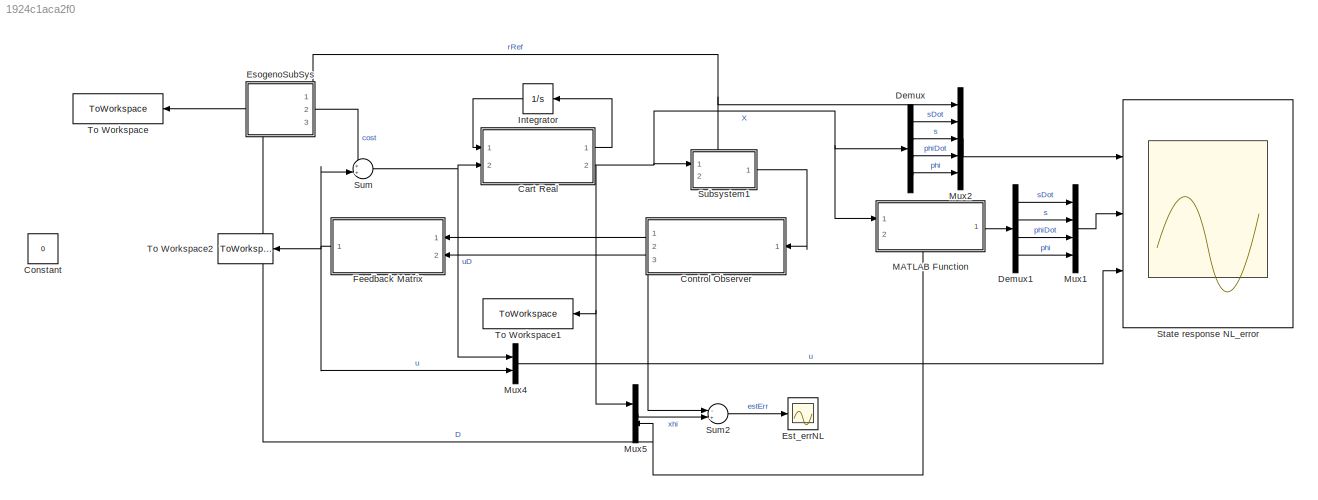
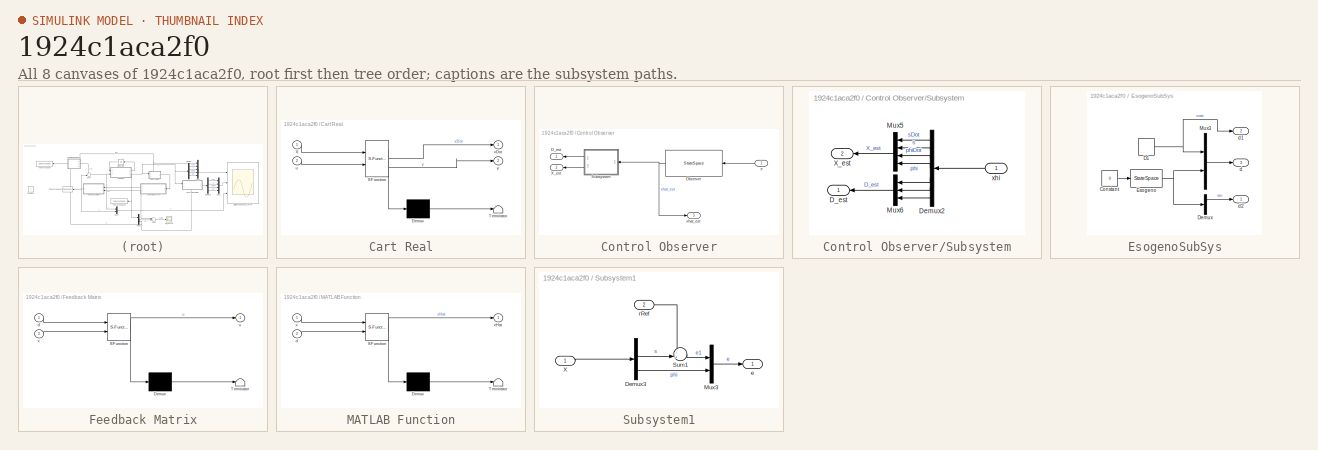
[diagram: thumbnail index - all 8 canvases of the model, root first then tree order]
MODEL slx_1924c1aca2f0
KIND model
CONFIG AbsTol = auto
CONFIG EnableMultiTasking = off
CONFIG FixedStep = 0.05
CONFIG InitFcn = variableCalc
CONFIG MaxStep = auto
CONFIG MinStep = auto
CONFIG RelTol = 1e-5
CONFIG SampleTimeConstraint = Unconstrained
CONFIG Solver = FixedStepAuto
CONFIG SolverName = FixedStepAuto
CONFIG StartTime = 0.0
CONFIG StopTime = time
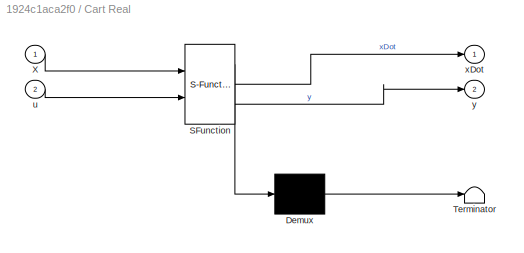
BLOCK [SubSystem] Cart Real
  ErrorFcn = Stateflow.Translate.translate
  PermitHierarchicalResolution = ExplicitOnly
  Ports = [2, 2]
  RequestExecContextInheritance = off
  SFBlockType = MATLAB Function
  TreatAsAtomicUnit = on
BLOCK [Demux] Cart Real/ Demux 
  Outputs = 1
  Ports = [1, 1]
BLOCK [S-Function] Cart Real/ SFunction 
  EnableBusSupport = on
  FunctionName = sf_sfun
  PortCounts = [2 3]
  Ports = [2, 3]
  SFcnIsStateOwnerBlock = off
  SFunctionDeploymentMode = off
  Tag = Stateflow S-Function 3
BLOCK [Terminator] Cart Real/ Terminator 
BLOCK [Inport] Cart Real/X
BLOCK [Inport] Cart Real/u
  Port = 2
BLOCK [Outport] Cart Real/xDot
BLOCK [Outport] Cart Real/y
  Port = 2
BLOCK [Constant] Constant
  Value = 0
BLOCK [SubSystem] Control Observer
  NameLocation = top
  PortSchema = {"entries":[{"content":{"sides":[{"content":{"connectorIds":["In1"]},"type":"ConnectorPlacement.EquallySpacedRectSide","uuid":"06f85cea-79fe-4a26-b9da-f6471bf8bf3e"},{"content":{"connectorIds":["Out1","Out2"],"side":"RIGHT"},"type":"ConnectorPlacement.EquallySpacedRectSide","uuid":"d648b2f6-c54a-4107-ac52-849760b06714"},{"content":{"connectorIds":[],"side":"TOP"},"type":"ConnectorPlacement.Equally...<+399ch>
  Ports = [1, 3]
  RequestExecContextInheritance = off
BLOCK [Outport] Control Observer/D_est
  NameLocation = left
BLOCK [StateSpace] Control Observer/Observer
  A = FOss
  B = GOss
  C = eye(7)
  D = zeros(7,2)
  InitialCondition = oss0
  Ports = [1, 1]
BLOCK [SubSystem] Control Observer/Subsystem
  NameLocation = top
  Ports = [1, 2]
  RequestExecContextInheritance = off
BLOCK [Outport] Control Observer/Subsystem/D_est
BLOCK [Demux] Control Observer/Subsystem/Demux2
  Outputs = 7
  Ports = [1, 7]
BLOCK [Mux] Control Observer/Subsystem/Mux5
  DisplayOption = bar
  NameLocation = top
  Ports = [4, 1]
BLOCK [Mux] Control Observer/Subsystem/Mux6
  DisplayOption = bar
  Inputs = 3
  NameLocation = top
  Ports = [3, 1]
BLOCK [Outport] Control Observer/Subsystem/X_est
  Port = 2
BLOCK [Inport] Control Observer/Subsystem/xhi
BLOCK [Outport] Control Observer/X_est
  NameLocation = left
  Port = 2
BLOCK [Inport] Control Observer/e
BLOCK [Outport] Control Observer/xhat_est
  Port = 3
BLOCK [Demux] Demux
  Ports = [1, 4]
BLOCK [Demux] Demux1
  Ports = [1, 4]
BLOCK [SubSystem] EsogenoSubSys
  PortSchema = {"entries":[{"content":{"sides":[{"content":{"connectorIds":["Out3"]},"type":"ConnectorPlacement.EquallySpacedRectSide","uuid":"2f048b8f-2ece-4481-a059-706f1c660597"},{"content":{"connectorIds":["Out1","Out2"],"side":"RIGHT"},"type":"ConnectorPlacement.EquallySpacedRectSide","uuid":"5f2d4447-8f06-4961-a5d4-88bfa1a982d6"},{"content":{"connectorIds":[],"side":"TOP"},"type":"ConnectorPlacement.Equall...<+250ch>
  Ports = [0, 3]
  RequestExecContextInheritance = off
BLOCK [Constant] EsogenoSubSys/Constant
  Value = 0
BLOCK [DiscretePulseGenerator] EsogenoSubSys/D1
  Amplitude = aD1
  Period = 1/wD1
  Ports = [0, 1]
  PulseType = Time based
  PulseWidth = 50
BLOCK [Demux] EsogenoSubSys/Demux
  Outputs = 2
  Ports = [1, 2]
BLOCK [StateSpace] EsogenoSubSys/Esogeno
  A = S
  B = bd
  C = cd
  D = dd
  InitialCondition = d0
  Ports = [1, 1]
BLOCK [Mux] EsogenoSubSys/Mux3
  DisplayOption = bar
  Inputs = 2
  Ports = [2, 1]
BLOCK [Outport] EsogenoSubSys/d
  Port = 3
BLOCK [Outport] EsogenoSubSys/d1
  Port = 2
BLOCK [Outport] EsogenoSubSys/d2
BLOCK [Scope] Est_errNL
  Floating = off
  NumInputPorts = 1
  Ports = [1]
  ScopeSpecificationString = Simulink.scopes.TimeScopeBlockCfg('CurrentConfiguration', extmgr.ConfigurationSet(extmgr.Configuration('Core','General UI',true),extmgr.Configuration('Core','Source UI',true),extmgr.Configuration('Sources','WiredSimulink',true,'DataLoggingVariableName','ScopeData1'),extmgr.Configuration('Visuals','Time Domain',true,'SerializedDisplays',{struct('MinYLimReal','-1379.03441','MaxYLimReal','1349.37072'...<+1638ch>
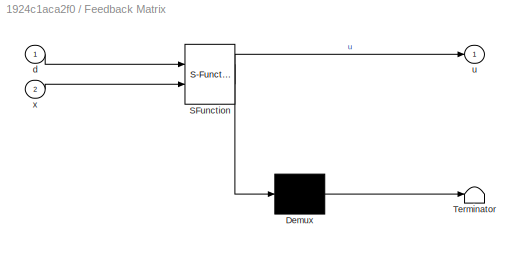
BLOCK [SubSystem] Feedback Matrix
  ErrorFcn = Stateflow.Translate.translate
  PermitHierarchicalResolution = ExplicitOnly
  Ports = [2, 1]
  RequestExecContextInheritance = off
  SFBlockType = MATLAB Function
  TreatAsAtomicUnit = on
BLOCK [Demux] Feedback Matrix/ Demux 
  Outputs = 1
  Ports = [1, 1]
BLOCK [S-Function] Feedback Matrix/ SFunction 
  EnableBusSupport = on
  FunctionName = sf_sfun
  PortCounts = [2 2]
  Ports = [2, 2]
  SFcnIsStateOwnerBlock = off
  SFunctionDeploymentMode = off
  Tag = Stateflow S-Function 2
BLOCK [Terminator] Feedback Matrix/ Terminator 
BLOCK [Inport] Feedback Matrix/d
BLOCK [Outport] Feedback Matrix/u
BLOCK [Inport] Feedback Matrix/x
  Port = 2
BLOCK [Integrator] Integrator
  InitialCondition = x0
  NameLocation = top
  Ports = [1, 1]
BLOCK [SubSystem] MATLAB Function
  ErrorFcn = Stateflow.Translate.translate
  PermitHierarchicalResolution = ExplicitOnly
  Ports = [2, 1]
  RequestExecContextInheritance = off
  SFBlockType = MATLAB Function
  TreatAsAtomicUnit = on
BLOCK [Demux] MATLAB Function/ Demux 
  Outputs = 1
  Ports = [1, 1]
BLOCK [S-Function] MATLAB Function/ SFunction 
  EnableBusSupport = on
  FunctionName = sf_sfun
  PortCounts = [2 2]
  Ports = [2, 2]
  SFcnIsStateOwnerBlock = off
  SFunctionDeploymentMode = off
  Tag = Stateflow S-Function 1
BLOCK [Terminator] MATLAB Function/ Terminator 
BLOCK [Inport] MATLAB Function/d
  Port = 2
BLOCK [Inport] MATLAB Function/x
BLOCK [Outport] MATLAB Function/xHat
BLOCK [Mux] Mux1
  DisplayOption = bar
  Ports = [4, 1]
BLOCK [Mux] Mux2
  DisplayOption = bar
  Inputs = 5
  Ports = [5, 1]
BLOCK [Mux] Mux4
  DisplayOption = bar
  Inputs = 2
  Ports = [2, 1]
BLOCK [Mux] Mux5
  DisplayOption = bar
  Inputs = 2
  Ports = [2, 1]
BLOCK [Scope] State response NL_error
  Floating = off
  NumInputPorts = 3
  Ports = [3]
  ScopeSpecificationString = Simulink.scopes.TimeScopeBlockCfg('CurrentConfiguration', extmgr.ConfigurationSet(extmgr.Configuration('Core','General UI',true),extmgr.Configuration('Core','Source UI',true),extmgr.Configuration('Sources','WiredSimulink',true),extmgr.Configuration('Visuals','Time Domain',true,'SerializedDisplays',{struct('MinYLimReal','-1.60081','MaxYLimReal','1.35162','YLabelReal','','MinYLimMag','0.00000','MaxY...<+3726ch>
BLOCK [SubSystem] Subsystem1
  PortSchema = {"entries":[{"content":{"sides":[{"content":{"connectorIds":["In1"]},"type":"ConnectorPlacement.EquallySpacedRectSide","uuid":"26d6d4a6-782a-4ec1-8ad1-624a6e3a6605"},{"content":{"connectorIds":["Out1"],"side":"RIGHT"},"type":"ConnectorPlacement.EquallySpacedRectSide","uuid":"9f19e00a-24c8-46ea-a664-70386d003256"},{"content":{"connectorIds":["In2"],"side":"TOP"},"type":"ConnectorPlacement.EquallySp...<+247ch>
  Ports = [2, 1]
  RequestExecContextInheritance = off
BLOCK [Demux] Subsystem1/Demux3
  Ports = [1, 4]
BLOCK [Mux] Subsystem1/Mux3
  DisplayOption = bar
  Inputs = 2
  Ports = [2, 1]
BLOCK [Sum] Subsystem1/Sum1
  Inputs = -+|
  Ports = [2, 1]
BLOCK [Inport] Subsystem1/X
BLOCK [Outport] Subsystem1/e
  NameLocation = top
BLOCK [Inport] Subsystem1/rRef
  Port = 2
BLOCK [Sum] Sum
  Inputs = ++|
  Ports = [2, 1]
BLOCK [Sum] Sum2
  Inputs = -+|
  Ports = [2, 1]
BLOCK [ToWorkspace] To Workspace
  FixptAsFi = on
  MaxDataPoints = inf
  NameLocation = top
  Ports = [1]
  SampleTime = -1
  SaveFormat = Timeseries
  VariableName = D
BLOCK [ToWorkspace] To Workspace1
  FixptAsFi = on
  MaxDataPoints = inf
  NameLocation = top
  Ports = [1]
  SampleTime = -1
  SaveFormat = Timeseries
  VariableName = X
BLOCK [ToWorkspace] To Workspace2
  FixptAsFi = on
  MaxDataPoints = inf
  NameLocation = top
  Ports = [1]
  SampleTime = -1
  SaveFormat = Timeseries
  VariableName = U
LINE Cart Real:1 -> Integrator:1
NET Cart Real:2 -> Demux:1, MATLAB Function:1, Mux5:1, Subsystem1:1, To Workspace1:1
NET Control Observer/Observer:1 -> Control Observer/Subsystem:1, Control Observer/xhat_est:1
LINE Control Observer/Subsystem/Demux2:1 -> Control Observer/Subsystem/Mux5:1
LINE Control Observer/Subsystem/Demux2:2 -> Control Observer/Subsystem/Mux5:2
LINE Control Observer/Subsystem/Demux2:3 -> Control Observer/Subsystem/Mux5:3
LINE Control Observer/Subsystem/Demux2:4 -> Control Observer/Subsystem/Mux5:4
LINE Control Observer/Subsystem/Demux2:5 -> Control Observer/Subsystem/Mux6:1
LINE Control Observer/Subsystem/Demux2:6 -> Control Observer/Subsystem/Mux6:2
LINE Control Observer/Subsystem/Demux2:7 -> Control Observer/Subsystem/Mux6:3
LINE Control Observer/Subsystem/Mux5:1 -> Control Observer/Subsystem/X_est:1
LINE Control Observer/Subsystem/Mux6:1 -> Control Observer/Subsystem/D_est:1
LINE Control Observer/Subsystem/xhi:1 -> Control Observer/Subsystem/Demux2:1
LINE Control Observer/Subsystem:1 -> Control Observer/D_est:1
LINE Control Observer/Subsystem:2 -> Control Observer/X_est:1
LINE Control Observer/e:1 -> Control Observer/Observer:1
LINE Control Observer:1 -> Feedback Matrix:1
LINE Control Observer:2 -> Feedback Matrix:2
LINE Control Observer:3 -> Sum2:1
LINE Demux1:1 -> Mux1:1
LINE Demux1:2 -> Mux1:2
LINE Demux1:3 -> Mux1:3
LINE Demux1:4 -> Mux1:4
LINE Demux:1 -> Mux2:2
LINE Demux:2 -> Mux2:3
LINE Demux:3 -> Mux2:4
LINE Demux:4 -> Mux2:5
LINE EsogenoSubSys/Constant:1 -> EsogenoSubSys/Esogeno:1
NET EsogenoSubSys/D1:1 -> EsogenoSubSys/Mux3:1, EsogenoSubSys/d1:1
LINE EsogenoSubSys/Demux:1 -> EsogenoSubSys/d2:1
NET EsogenoSubSys/Esogeno:1 -> EsogenoSubSys/Demux:1, EsogenoSubSys/Mux3:2
LINE EsogenoSubSys/Mux3:1 -> EsogenoSubSys/d:1
NET EsogenoSubSys:1 -> Mux2:1, Subsystem1:2
LINE EsogenoSubSys:2 -> Sum:1
NET EsogenoSubSys:3 -> MATLAB Function:2, Mux5:2, To Workspace:1
NET Feedback Matrix:1 -> Mux4:2, Sum:2, To Workspace2:1
LINE Integrator:1 -> Cart Real:1
LINE MATLAB Function:1 -> Demux1:1
LINE Mux1:1 -> State response NL_error:2
LINE Mux2:1 -> State response NL_error:1
LINE Mux4:1 -> State response NL_error:3
LINE Mux5:1 -> Sum2:2
LINE Subsystem1/Demux3:2 -> Subsystem1/Sum1:2
LINE Subsystem1/Demux3:4 -> Subsystem1/Mux3:2
LINE Subsystem1/Mux3:1 -> Subsystem1/e:1
LINE Subsystem1/Sum1:1 -> Subsystem1/Mux3:1
LINE Subsystem1/X:1 -> Subsystem1/Demux3:1
LINE Subsystem1/rRef:1 -> Subsystem1/Sum1:1
LINE Subsystem1:1 -> Control Observer:1
LINE Sum2:1 -> Est_errNL:1
NET Sum:1 -> Cart Real:2, Mux4:1
note: NET lines group one-source signal fan-out (src -> all destinations, sorted); 1:1 wires keep LINE
CHART MATLAB Function states=1 transitions=1
  STATE_LABEL 'eML_blk_kernel()'
  STATE_LABEL "SCRIPT:\nfunction xHat = baseChange(x,d)\n\ncoder.extrinsic('evalin', 'assignin')\nPiMat = zeros(4,3);                  % Needed in order to set variable class correctly\nPiMat = evalin('base','PiMat'); % Read value from workspace\n\n\nxHat = x-PiMat*d;\nend\n"
CHART Feedback Matrix states=1 transitions=1
  STATE_LABEL 'eML_blk_kernel()'
  STATE_LABEL "SCRIPT:\nfunction u = feedMatrix(d,x)\n\ncoder.extrinsic('evalin', 'assignin')\nK = zeros(1,4);                  % Needed in order to set variable class correctly\nK = evalin('base','K'); % Read value from workspace\n\nL = zeros(1,3);                  % Needed in order to set variable class correctly\nL = evalin('base','L'); % Read value from workspace\n\n% x(2)=x(2)-d(2);\nu=0;\nu=K*x+L*d;\nend"
CHART Cart Real states=1 transitions=1
  STATE_LABEL 'eML_blk_kernel()'
  STATE_LABEL "SCRIPT:\nfunction [xDot,y] = CartSis(X,u)\n\ncoder.extrinsic('evalin', 'assignin')\nl=1;\nl = evalin('base','l'); % Read value from workspace\n\nM=1;\nM = evalin('base','M'); % Read value from workspace\n\nF=1;\nF = evalin('base','F'); % Read value from workspace\n\ng=9.81;\ng = evalin('base','g'); % Read value from workspace\n\ny=X;\n\nxDot=zeros(4,1);\nxDot(1) = (u - F*X(1))/M;\nxDot(2) = X(1);\nxDot(3) = g/l*sin(X(...<+50ch>"
CHART  states=0 transitions=0
CHART  states=0 transitions=0
CHART  states=0 transitions=0
